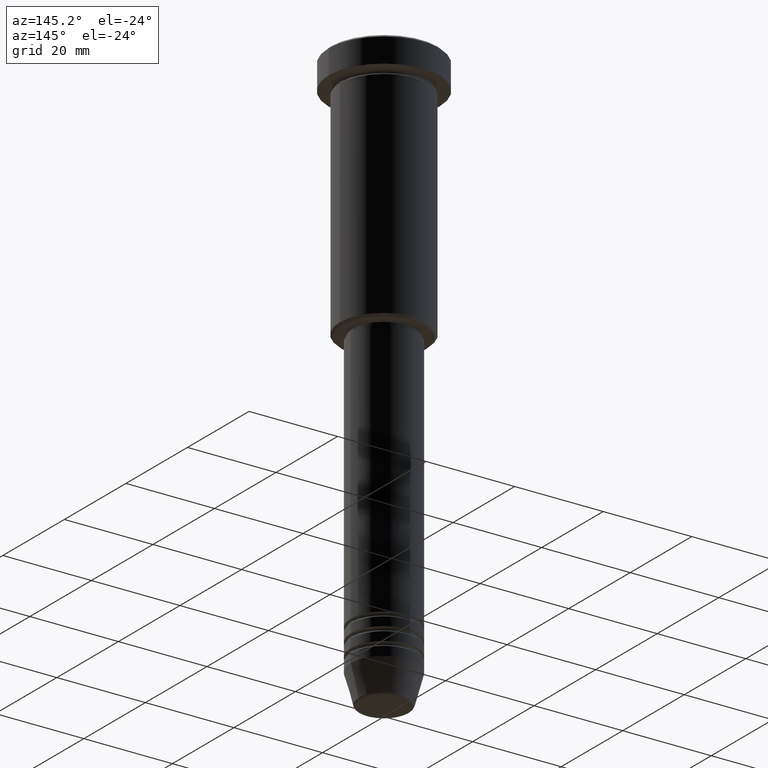
[diagram: clean part render]
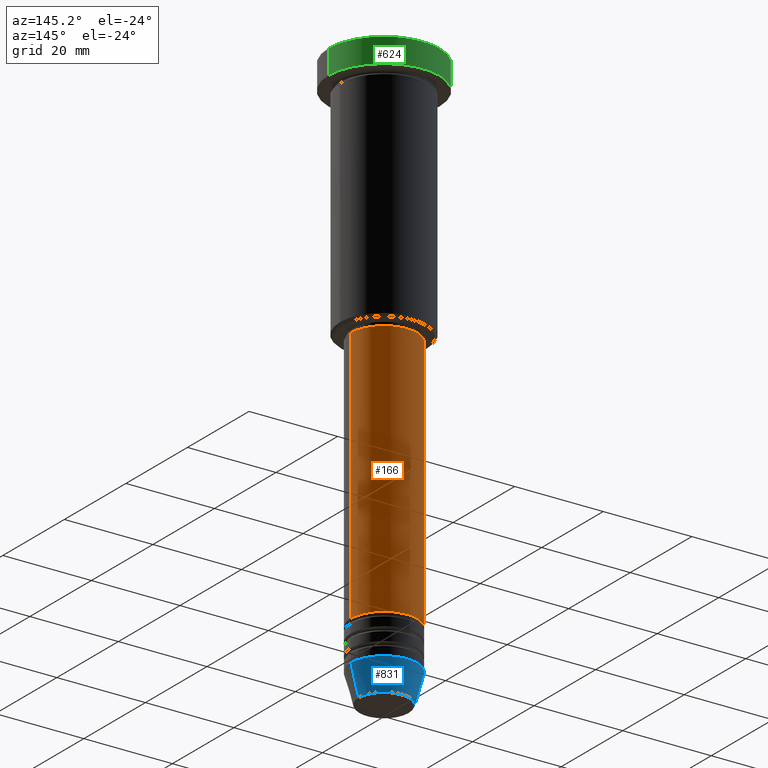
[diagram: same view with three faces highlighted in distinct colors, each labeled with its STEP entity id]
A machine part, auxiliary view with three faces highlighted in distinct colors.
Their STEP definitions:

[orange] entity #166 — the highlighted cylindrical surface (partial cylindrical patch) has radius 7.5 mm, axis along (-0, -0, 1).
#1 = VERTEX_POINT ( 'NONE', #300 ) ;
#51 = EDGE_CURVE ( 'NONE', #1, #174, #757, .T. ) ;
#143 = DIRECTION ( 'NONE',  ( -0.000000000000000000, -0.000000000000000000, 1.000000000000000000 ) ) ;
#166 = ADVANCED_FACE ( 'NONE', ( #528 ), #241, .T. ) ;
#174 = VERTEX_POINT ( 'NONE', #991 ) ;
#241 = CYLINDRICAL_SURFACE ( 'NONE', #1048, 7.500000000000000000 ) ;
#257 = CARTESIAN_POINT ( 'NONE',  ( 0.000000000000000000, 0.000000000000000000, 0.000000000000000000 ) ) ;
#300 = CARTESIAN_POINT ( 'NONE',  ( -7.500000000000000000, 9.184850993605147944E-16, -114.9999999999999574 ) ) ;
#312 = DIRECTION ( 'NONE',  ( 1.000000000000000000, 0.000000000000000000, 0.000000000000000000 ) ) ;
#336 = VECTOR ( 'NONE', #143, 1000.000000000000000 ) ;
#352 = VECTOR ( 'NONE', #1119, 1000.000000000000000 ) ;
#441 = CARTESIAN_POINT ( 'NONE',  ( 7.500000000000000000, 0.000000000000000000, -57.00000000000000000 ) ) ;
#474 = EDGE_LOOP ( 'NONE', ( #1118, #916, #572, #1057 ) ) ;
#528 = FACE_OUTER_BOUND ( 'NONE', #474, .T. ) ;
#541 = CIRCLE ( 'NONE', #576, 7.500000000000000000 ) ;
#564 = VERTEX_POINT ( 'NONE', #722 ) ;
#569 = VERTEX_POINT ( 'NONE', #441 ) ;
#572 = ORIENTED_EDGE ( 'NONE', *, *, #922, .F. ) ;
#576 = AXIS2_PLACEMENT_3D ( 'NONE', #1144, #697, #312 ) ;
#593 = DIRECTION ( 'NONE',  ( 1.000000000000000000, 0.000000000000000000, 0.000000000000000000 ) ) ;
#669 = DIRECTION ( 'NONE',  ( -0.000000000000000000, -0.000000000000000000, 1.000000000000000000 ) ) ;
#679 = LINE ( 'NONE', #961, #336 ) ;
#697 = DIRECTION ( 'NONE',  ( -0.000000000000000000, -0.000000000000000000, 1.000000000000000000 ) ) ;
#698 = DIRECTION ( 'NONE',  ( -0.000000000000000000, -0.000000000000000000, 1.000000000000000000 ) ) ;
#700 = CARTESIAN_POINT ( 'NONE',  ( 0.000000000000000000, 0.000000000000000000, -57.00000000000000000 ) ) ;
#708 = DIRECTION ( 'NONE',  ( 1.000000000000000000, 0.000000000000000000, 0.000000000000000000 ) ) ;
#722 = CARTESIAN_POINT ( 'NONE',  ( 7.500000000000000000, 0.000000000000000000, -114.9999999999999574 ) ) ;
#757 = LINE ( 'NONE', #948, #352 ) ;
#916 = ORIENTED_EDGE ( 'NONE', *, *, #51, .T. ) ;
#922 = EDGE_CURVE ( 'NONE', #569, #174, #983, .T. ) ;
#925 = EDGE_CURVE ( 'NONE', #564, #569, #679, .T. ) ;
#948 = CARTESIAN_POINT ( 'NONE',  ( -7.500000000000000000, 9.184850993605147944E-16, 0.000000000000000000 ) ) ;
#961 = CARTESIAN_POINT ( 'NONE',  ( 7.500000000000000000, 0.000000000000000000, 0.000000000000000000 ) ) ;
#983 = CIRCLE ( 'NONE', #999, 7.500000000000000000 ) ;
#991 = CARTESIAN_POINT ( 'NONE',  ( -7.500000000000000000, 9.184850993605147944E-16, -57.00000000000000000 ) ) ;
#999 = AXIS2_PLACEMENT_3D ( 'NONE', #700, #669, #593 ) ;
#1008 = EDGE_CURVE ( 'NONE', #564, #1, #541, .T. ) ;
#1048 = AXIS2_PLACEMENT_3D ( 'NONE', #257, #698, #708 ) ;
#1057 = ORIENTED_EDGE ( 'NONE', *, *, #925, .F. ) ;
#1118 = ORIENTED_EDGE ( 'NONE', *, *, #1008, .T. ) ;
#1119 = DIRECTION ( 'NONE',  ( -0.000000000000000000, -0.000000000000000000, 1.000000000000000000 ) ) ;
#1144 = CARTESIAN_POINT ( 'NONE',  ( 0.000000000000000000, 0.000000000000000000, -114.9999999999999574 ) ) ;

[blue] entity #831 — the highlighted conical surface has half-angle 15 deg.
#35 = CARTESIAN_POINT ( 'NONE',  ( 0.000000000000000000, 0.000000000000000000, -130.6294095225512422 ) ) ;
#60 = DIRECTION ( 'NONE',  ( -0.000000000000000000, -0.000000000000000000, 1.000000000000000000 ) ) ;
#82 = EDGE_CURVE ( 'NONE', #600, #666, #494, .T. ) ;
#103 = DIRECTION ( 'NONE',  ( -0.000000000000000000, -0.000000000000000000, 1.000000000000000000 ) ) ;
#117 = CIRCLE ( 'NONE', #649, 5.723655072137191269 ) ;
#160 = ORIENTED_EDGE ( 'NONE', *, *, #82, .T. ) ;
#191 = CARTESIAN_POINT ( 'NONE',  ( -7.500000000000000000, 9.184850993605147944E-16, -124.0000000000000000 ) ) ;
#195 = AXIS2_PLACEMENT_3D ( 'NONE', #1128, #60, #411 ) ;
#214 = CONICAL_SURFACE ( 'NONE', #195, 7.500000000000000000, 0.2617993877991500740 ) ;
#215 = VERTEX_POINT ( 'NONE', #353 ) ;
#226 = ORIENTED_EDGE ( 'NONE', *, *, #358, .T. ) ;
#307 = DIRECTION ( 'NONE',  ( 1.000000000000000000, 0.000000000000000000, 0.000000000000000000 ) ) ;
#314 = CARTESIAN_POINT ( 'NONE',  ( -7.500000000000000000, 9.184850993605147944E-16, -124.0000000000000000 ) ) ;
#353 = CARTESIAN_POINT ( 'NONE',  ( 7.500000000000000000, 0.000000000000000000, -124.0000000000000000 ) ) ;
#358 = EDGE_CURVE ( 'NONE', #1101, #600, #117, .T. ) ;
#364 = DIRECTION ( 'NONE',  ( -0.000000000000000000, -0.000000000000000000, 1.000000000000000000 ) ) ;
#368 = CARTESIAN_POINT ( 'NONE',  ( 7.500000000000000000, 0.000000000000000000, -124.0000000000000000 ) ) ;
#378 = EDGE_CURVE ( 'NONE', #1101, #215, #1183, .T. ) ;
#411 = DIRECTION ( 'NONE',  ( 1.000000000000000000, 0.000000000000000000, 0.000000000000000000 ) ) ;
#494 = LINE ( 'NONE', #314, #1010 ) ;
#520 = CIRCLE ( 'NONE', #998, 7.500000000000000000 ) ;
#600 = VERTEX_POINT ( 'NONE', #1074 ) ;
#642 = DIRECTION ( 'NONE',  ( 1.000000000000000000, 0.000000000000000000, 0.000000000000000000 ) ) ;
#649 = AXIS2_PLACEMENT_3D ( 'NONE', #35, #364, #307 ) ;
#666 = VERTEX_POINT ( 'NONE', #191 ) ;
#678 = DIRECTION ( 'NONE',  ( -0.2588190451025213501, 3.169619151431772337E-17, 0.9659258262890680902 ) ) ;
#740 = EDGE_CURVE ( 'NONE', #215, #666, #520, .T. ) ;
#752 = ORIENTED_EDGE ( 'NONE', *, *, #378, .F. ) ;
#831 = ADVANCED_FACE ( 'NONE', ( #1045 ), #214, .T. ) ;
#900 = ORIENTED_EDGE ( 'NONE', *, *, #740, .F. ) ;
#920 = EDGE_LOOP ( 'NONE', ( #226, #160, #900, #752 ) ) ;
#957 = DIRECTION ( 'NONE',  ( 0.2588190451025213501, 0.000000000000000000, 0.9659258262890680902 ) ) ;
#998 = AXIS2_PLACEMENT_3D ( 'NONE', #1018, #103, #642 ) ;
#1010 = VECTOR ( 'NONE', #678, 1000.000000000000000 ) ;
#1011 = VECTOR ( 'NONE', #957, 1000.000000000000000 ) ;
#1018 = CARTESIAN_POINT ( 'NONE',  ( 0.000000000000000000, 0.000000000000000000, -124.0000000000000000 ) ) ;
#1045 = FACE_OUTER_BOUND ( 'NONE', #920, .T. ) ;
#1066 = CARTESIAN_POINT ( 'NONE',  ( 5.723655072137191269, 0.000000000000000000, -130.6294095225512422 ) ) ;
#1074 = CARTESIAN_POINT ( 'NONE',  ( -5.723655072137191269, 8.097153428560735915E-16, -130.6294095225512422 ) ) ;
#1101 = VERTEX_POINT ( 'NONE', #1066 ) ;
#1128 = CARTESIAN_POINT ( 'NONE',  ( 0.000000000000000000, 0.000000000000000000, -124.0000000000000000 ) ) ;
#1183 = LINE ( 'NONE', #368, #1011 ) ;

[green] entity #624 — the highlighted cylindrical surface (partial cylindrical patch) has radius 12.5 mm, axis along (-0, -0, 1).
#12 = VERTEX_POINT ( 'NONE', #33 ) ;
#30 = ORIENTED_EDGE ( 'NONE', *, *, #894, .T. ) ;
#33 = CARTESIAN_POINT ( 'NONE',  ( 12.50000000000000000, 0.000000000000000000, -0.4999999999999917843 ) ) ;
#83 = FACE_OUTER_BOUND ( 'NONE', #345, .T. ) ;
#253 = EDGE_CURVE ( 'NONE', #1022, #618, #382, .T. ) ;
#270 = EDGE_CURVE ( 'NONE', #882, #12, #907, .T. ) ;
#277 = DIRECTION ( 'NONE',  ( 1.000000000000000000, 0.000000000000000000, 0.000000000000000000 ) ) ;
#302 = DIRECTION ( 'NONE',  ( -0.000000000000000000, -0.000000000000000000, 1.000000000000000000 ) ) ;
#321 = DIRECTION ( 'NONE',  ( 1.000000000000000000, 0.000000000000000000, 0.000000000000000000 ) ) ;
#345 = EDGE_LOOP ( 'NONE', ( #30, #519, #709, #982 ) ) ;
#382 = LINE ( 'NONE', #388, #518 ) ;
#388 = CARTESIAN_POINT ( 'NONE',  ( -12.50000000000000000, 1.530808498934191521E-15, 0.000000000000000000 ) ) ;
#393 = CARTESIAN_POINT ( 'NONE',  ( 0.000000000000000000, 0.000000000000000000, -5.999999999999996447 ) ) ;
#399 = CARTESIAN_POINT ( 'NONE',  ( 12.50000000000000000, 0.000000000000000000, -5.999999999999996447 ) ) ;
#440 = AXIS2_PLACEMENT_3D ( 'NONE', #393, #1052, #321 ) ;
#478 = VECTOR ( 'NONE', #302, 1000.000000000000000 ) ;
#518 = VECTOR ( 'NONE', #748, 1000.000000000000000 ) ;
#519 = ORIENTED_EDGE ( 'NONE', *, *, #253, .T. ) ;
#525 = CYLINDRICAL_SURFACE ( 'NONE', #981, 12.50000000000000000 ) ;
#590 = CARTESIAN_POINT ( 'NONE',  ( -12.50000000000000000, 1.530808498934191521E-15, -5.999999999999996447 ) ) ;
#601 = EDGE_CURVE ( 'NONE', #618, #12, #1053, .T. ) ;
#618 = VERTEX_POINT ( 'NONE', #1162 ) ;
#624 = ADVANCED_FACE ( 'NONE', ( #83 ), #525, .T. ) ;
#707 = DIRECTION ( 'NONE',  ( 0.000000000000000000, 0.000000000000000000, -1.000000000000000000 ) ) ;
#709 = ORIENTED_EDGE ( 'NONE', *, *, #601, .T. ) ;
#745 = AXIS2_PLACEMENT_3D ( 'NONE', #1079, #707, #1181 ) ;
#748 = DIRECTION ( 'NONE',  ( -0.000000000000000000, -0.000000000000000000, 1.000000000000000000 ) ) ;
#838 = CARTESIAN_POINT ( 'NONE',  ( 12.50000000000000000, 0.000000000000000000, 0.000000000000000000 ) ) ;
#882 = VERTEX_POINT ( 'NONE', #399 ) ;
#894 = EDGE_CURVE ( 'NONE', #882, #1022, #1016, .T. ) ;
#896 = CARTESIAN_POINT ( 'NONE',  ( 0.000000000000000000, 0.000000000000000000, 0.000000000000000000 ) ) ;
#907 = LINE ( 'NONE', #838, #478 ) ;
#981 = AXIS2_PLACEMENT_3D ( 'NONE', #896, #1089, #277 ) ;
#982 = ORIENTED_EDGE ( 'NONE', *, *, #270, .F. ) ;
#1016 = CIRCLE ( 'NONE', #440, 12.50000000000000000 ) ;
#1022 = VERTEX_POINT ( 'NONE', #590 ) ;
#1052 = DIRECTION ( 'NONE',  ( -0.000000000000000000, -0.000000000000000000, 1.000000000000000000 ) ) ;
#1053 = CIRCLE ( 'NONE', #745, 12.50000000000000000 ) ;
#1079 = CARTESIAN_POINT ( 'NONE',  ( 0.000000000000000000, 0.000000000000000000, -0.4999999999999917843 ) ) ;
#1089 = DIRECTION ( 'NONE',  ( -0.000000000000000000, -0.000000000000000000, 1.000000000000000000 ) ) ;
#1162 = CARTESIAN_POINT ( 'NONE',  ( -12.50000000000000000, 1.530808498934191521E-15, -0.4999999999999917843 ) ) ;
#1181 = DIRECTION ( 'NONE',  ( 1.000000000000000000, 0.000000000000000000, 0.000000000000000000 ) ) ;